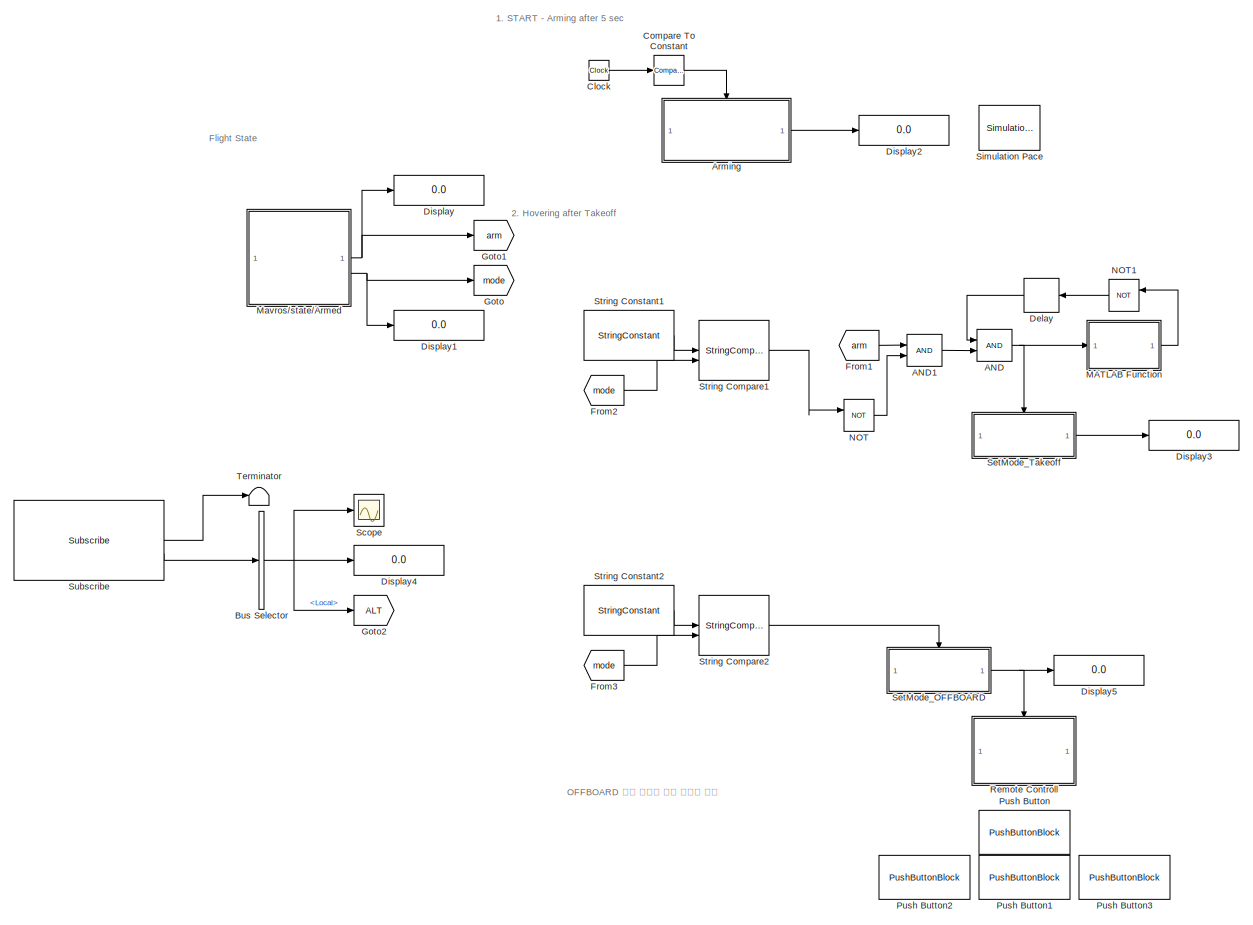
[diagram: root canvas - part 1/1, most of the canvas]
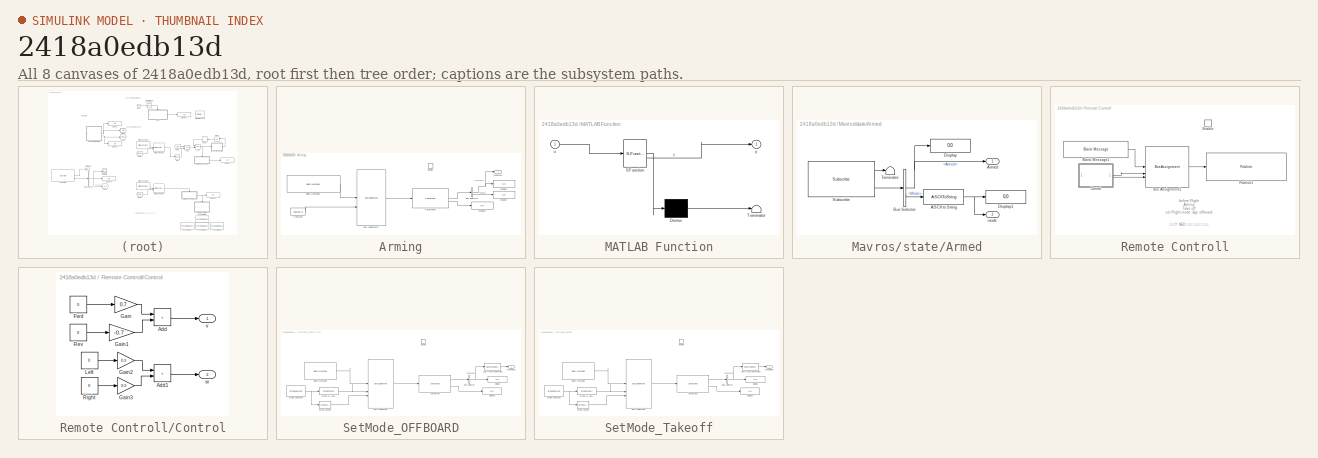
[diagram: thumbnail index - all 8 canvases of the model, root first then tree order]
MODEL slx_2418a0edb13d
KIND model
CONFIG AbsTol = auto
CONFIG EnableMultiTasking = off
CONFIG FixedStep = auto
CONFIG MaxStep = auto
CONFIG MinStep = auto
CONFIG RelTol = 1e-3
CONFIG SampleTimeConstraint = Unconstrained
CONFIG SolverName = FixedStepAuto
CONFIG StartTime = 0.0
CONFIG StopTime = 1000
BLOCK [Logic] AND
  AllPortsSameDT = off
  IconShape = distinctive
  OutDataTypeStr = boolean
BLOCK [Logic] AND1
  AllPortsSameDT = off
  IconShape = distinctive
  OutDataTypeStr = boolean
BLOCK [SubSystem] Arming
BLOCK [Reference] Arming/Blank Message1  REF=robotlib/Blank Message
  SourceBlock = robotlib/Blank Message
  SourceType = ROS Blank Message
BLOCK [BusAssignment] Arming/Bus Assignment1
  AssignedSignals = Value
BLOCK [BusSelector] Arming/Bus Selector1
  OutputSignals = Success,Result
BLOCK [Reference] Arming/Call Service1  REF=robotlib/Call Service
  SourceBlock = robotlib/Call Service
  SourceType = ROS Call Service
BLOCK [Constant] Arming/Constant
  Value = logical(1)
BLOCK [Display] Arming/Display2
  Decimation = 1
BLOCK [Display] Arming/Display3
  Decimation = 1
BLOCK [Display] Arming/Display4
  Decimation = 1
BLOCK [EnablePort] Arming/Enable
BLOCK [Outport] Arming/isSuccess
BLOCK [BusSelector] Bus Selector
  OutputSignals = Local
BLOCK [Clock] Clock
BLOCK [Reference] Compare To Constant  REF=simulink/Logic and Bit
Operations/Compare
To Constant
  SourceBlock = simulink/Logic and Bit\nOperations/Compare\nTo Constant
  SourceType = Compare To Constant
BLOCK [Delay] Delay
  InputPortMap = u0
  NameLocation = top
BLOCK [Display] Display
  Decimation = 1
BLOCK [Display] Display1
  Decimation = 1
BLOCK [Display] Display2
  Decimation = 1
BLOCK [Display] Display3
  Decimation = 1
BLOCK [Display] Display4
  Decimation = 1
BLOCK [Display] Display5
  Decimation = 1
BLOCK [From] From1
  GotoTag = arm
BLOCK [From] From2
  GotoTag = mode
BLOCK [From] From3
  GotoTag = mode
BLOCK [Goto] Goto
  GotoTag = mode
BLOCK [Goto] Goto1
  GotoTag = arm
BLOCK [Goto] Goto2
  GotoTag = ALT
BLOCK [SubSystem] MATLAB Function
  ErrorFcn = Stateflow.Translate.translate
  LibrarySourceBlock = simulink/User-Defined\nFunctions/MATLAB Function
  PermitHierarchicalResolution = ExplicitOnly
  SFBlockType = MATLAB Function
  TreatAsAtomicUnit = on
BLOCK [Demux] MATLAB Function/ Demux 
  Outputs = 1
BLOCK [S-Function] MATLAB Function/ SFunction 
  EnableBusSupport = on
  FunctionName = sf_sfun
  PortCounts = [1 2]
  SFcnIsStateOwnerBlock = off
  SFunctionDeploymentMode = off
  Tag = Stateflow S-Function 2
BLOCK [Terminator] MATLAB Function/ Terminator 
BLOCK [Inport] MATLAB Function/u
BLOCK [Outport] MATLAB Function/y
BLOCK [SubSystem] Mavros//state//Armed
BLOCK [ASCIIToString] Mavros//state//Armed/ASCII to String
BLOCK [Outport] Mavros//state//Armed/Armed
BLOCK [BusSelector] Mavros//state//Armed/Bus Selector
  OutputSignals = Armed,Mode
BLOCK [Display] Mavros//state//Armed/Display
  Decimation = 1
BLOCK [Display] Mavros//state//Armed/Display1
  Decimation = 1
BLOCK [Reference] Mavros//state//Armed/Subscribe  REF=robotlib/Subscribe
  SourceBlock = robotlib/Subscribe
  SourceType = ROS Subscribe
BLOCK [Terminator] Mavros//state//Armed/Terminator
BLOCK [Outport] Mavros//state//Armed/mode
  Port = 2
BLOCK [Logic] NOT
  AllPortsSameDT = off
  IconShape = distinctive
  Operator = NOT
  OutDataTypeStr = boolean
BLOCK [Logic] NOT1
  AllPortsSameDT = off
  IconShape = distinctive
  NameLocation = top
  Operator = NOT
  OutDataTypeStr = boolean
BLOCK [PushButtonBlock] Push Button
  ButtonText = Fwd
  OffValue = 0.000000
BLOCK [PushButtonBlock] Push Button1
  ButtonText = Back
  OffValue = 0.000000
BLOCK [PushButtonBlock] Push Button2
  ButtonText = Left
  OffValue = 0.000000
BLOCK [PushButtonBlock] Push Button3
  ButtonText = Right
  OffValue = 0.000000
BLOCK [SubSystem] Remote Controll
BLOCK [Reference] Remote Controll/Blank Message1  REF=robotlib/Blank Message
  SourceBlock = robotlib/Blank Message
  SourceType = ROS Blank Message
BLOCK [BusAssignment] Remote Controll/Bus Assignment1
  AssignedSignals = Twist.Linear.X,Twist.Angular.Z
  NameLocation = top
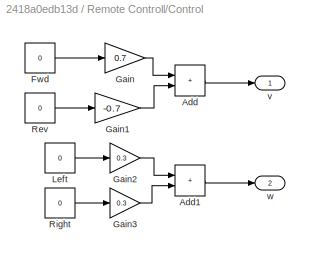
BLOCK [SubSystem] Remote Controll/Control
BLOCK [Sum] Remote Controll/Control/Add
  IconShape = rectangular
BLOCK [Sum] Remote Controll/Control/Add1
  IconShape = rectangular
BLOCK [Constant] Remote Controll/Control/Fwd
  Value = 0
BLOCK [Gain] Remote Controll/Control/Gain
  Gain = 0.7
BLOCK [Gain] Remote Controll/Control/Gain1
  Gain = -0.7
BLOCK [Gain] Remote Controll/Control/Gain2
  Gain = 0.3
BLOCK [Gain] Remote Controll/Control/Gain3
  Gain = 0.3
BLOCK [Constant] Remote Controll/Control/Left
  Value = 0
BLOCK [Constant] Remote Controll/Control/Rev
  Value = 0
BLOCK [Constant] Remote Controll/Control/Right
  Value = 0
BLOCK [Outport] Remote Controll/Control/v
BLOCK [Outport] Remote Controll/Control/w
  Port = 2
BLOCK [EnablePort] Remote Controll/Enable
BLOCK [Reference] Remote Controll/Publish1  REF=robotlib/Publish
  SourceBlock = robotlib/Publish
  SourceType = ROS Publish
BLOCK [Scope] Scope
  Floating = off
  NumInputPorts = 1
  ScopeSpecificationString = Simulink.scopes.TimeScopeBlockCfg('CurrentConfiguration', extmgr.ConfigurationSet(extmgr.Configuration('Core','General UI',true),extmgr.Configuration('Core','Source UI',true),extmgr.Configuration('Sources','WiredSimulink',true,'DataLoggingVariableName','ScopeData1'),extmgr.Configuration('Visuals','Time Domain',true,'SerializedDisplays',{struct('MinYLimReal','1.68635','MaxYLimReal','3.68635','YLabe...<+1364ch>
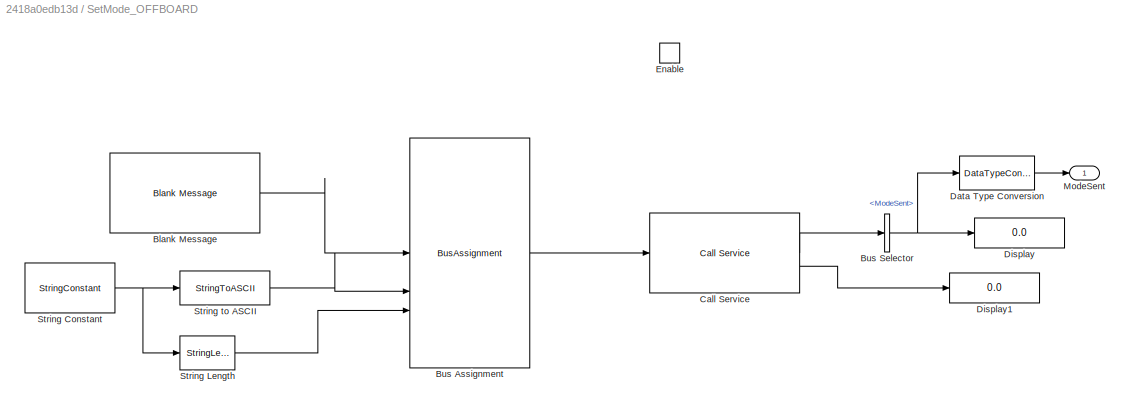
BLOCK [SubSystem] SetMode_OFFBOARD
BLOCK [Reference] SetMode_OFFBOARD/Blank Message  REF=robotlib/Blank Message
  SourceBlock = robotlib/Blank Message
  SourceType = ROS Blank Message
BLOCK [BusAssignment] SetMode_OFFBOARD/Bus Assignment
  AssignedSignals = CustomMode,CustomMode_SL_Info.CurrentLength
BLOCK [BusSelector] SetMode_OFFBOARD/Bus Selector
  OutputSignals = ModeSent
BLOCK [Reference] SetMode_OFFBOARD/Call Service  REF=robotlib/Call Service
  SourceBlock = robotlib/Call Service
  SourceType = ROS Call Service
BLOCK [DataTypeConversion] SetMode_OFFBOARD/Data Type Conversion
  OutDataTypeStr = boolean
  RndMeth = Floor
  SaturateOnIntegerOverflow = off
BLOCK [Display] SetMode_OFFBOARD/Display
  Decimation = 1
BLOCK [Display] SetMode_OFFBOARD/Display1
  Decimation = 1
BLOCK [EnablePort] SetMode_OFFBOARD/Enable
BLOCK [Outport] SetMode_OFFBOARD/ModeSent
BLOCK [StringConstant] SetMode_OFFBOARD/String Constant
  String = "OFFBOARD"
BLOCK [StringLength] SetMode_OFFBOARD/String Length
BLOCK [StringToASCII] SetMode_OFFBOARD/String to ASCII
  OutputVectorSize = 128
BLOCK [SubSystem] SetMode_Takeoff
BLOCK [Reference] SetMode_Takeoff/Blank Message  REF=robotlib/Blank Message
  SourceBlock = robotlib/Blank Message
  SourceType = ROS Blank Message
BLOCK [BusAssignment] SetMode_Takeoff/Bus Assignment
  AssignedSignals = CustomMode,CustomMode_SL_Info.CurrentLength
BLOCK [BusSelector] SetMode_Takeoff/Bus Selector
  OutputSignals = ModeSent
BLOCK [Reference] SetMode_Takeoff/Call Service  REF=robotlib/Call Service
  SourceBlock = robotlib/Call Service
  SourceType = ROS Call Service
BLOCK [DataTypeConversion] SetMode_Takeoff/Data Type Conversion
  OutDataTypeStr = boolean
  RndMeth = Floor
  SaturateOnIntegerOverflow = off
BLOCK [Display] SetMode_Takeoff/Display
  Decimation = 1
BLOCK [Display] SetMode_Takeoff/Display1
  Decimation = 1
BLOCK [EnablePort] SetMode_Takeoff/Enable
BLOCK [Outport] SetMode_Takeoff/ModeSent
BLOCK [StringConstant] SetMode_Takeoff/String Constant
  String = "AUTO.TAKEOFF"
BLOCK [StringLength] SetMode_Takeoff/String Length
BLOCK [StringToASCII] SetMode_Takeoff/String to ASCII
  OutputVectorSize = 128
BLOCK [Reference] Simulation Pace  REF=aerolibanimutils/Simulation Pace
  AttributesFormatString = %<SleepMode>\n%<SimulationPace> sec/sec
  SourceBlock = aerolibanimutils/Simulation Pace
  SourceType = Simulation Pace
BLOCK [StringCompare] String Compare1
BLOCK [StringCompare] String Compare2
BLOCK [StringConstant] String Constant1
  String = "AUTO.TAKEOFF"
BLOCK [StringConstant] String Constant2
  String = "AUTO.LOITER"
BLOCK [Reference] Subscribe  REF=robotlib/Subscribe
  SourceBlock = robotlib/Subscribe
  SourceType = ROS Subscribe
BLOCK [Terminator] Terminator
ANNOTATION (root): 1. START - Arming after 5 sec
ANNOTATION (root): 2. Hovering after Takeoff
ANNOTATION (root): Flight State
ANNOTATION (root): OFFBOARD 모드 진입후 고도 유지가 안됨
ANNOTATION Remote Controll: before Flight Arming Take off set Flight mode -> offboard
ANNOTATION Remote Controll: 문제점?: NED 좌표계 기준으로 움직임.
LINE AND1:1 -> AND:2
NET AND:1 -> MATLAB Function:1, SetMode_Takeoff:enable
LINE Arming/Blank Message1:1 -> Arming/Bus Assignment1:1
LINE Arming/Bus Assignment1:1 -> Arming/Call Service1:1
NET Arming/Bus Selector1:1 -> Arming/Display2:1, Arming/isSuccess:1
LINE Arming/Bus Selector1:2 -> Arming/Display4:1
LINE Arming/Call Service1:1 -> Arming/Bus Selector1:1
LINE Arming/Call Service1:2 -> Arming/Display3:1
LINE Arming/Constant:1 -> Arming/Bus Assignment1:2
LINE Arming:1 -> Display2:1
NET Bus Selector:1 -> Display4:1, Goto2:1, Scope:1
LINE Clock:1 -> Compare To Constant:1
LINE Compare To Constant:1 -> Arming:enable
LINE Delay:1 -> AND:1
LINE From1:1 -> AND1:1
LINE From2:1 -> String Compare1:2
LINE From3:1 -> String Compare2:2
LINE MATLAB Function:1 -> NOT1:1
NET Mavros//state//Armed/ASCII to String:1 -> Mavros//state//Armed/Display1:1, Mavros//state//Armed/mode:1
NET Mavros//state//Armed/Bus Selector:1 -> Mavros//state//Armed/Armed:1, Mavros//state//Armed/Display:1
LINE Mavros//state//Armed/Bus Selector:2 -> Mavros//state//Armed/ASCII to String:1
LINE Mavros//state//Armed/Subscribe:1 -> Mavros//state//Armed/Terminator:1
LINE Mavros//state//Armed/Subscribe:2 -> Mavros//state//Armed/Bus Selector:1
NET Mavros//state//Armed:1 -> Display:1, Goto1:1
NET Mavros//state//Armed:2 -> Display1:1, Goto:1
LINE NOT1:1 -> Delay:1
LINE NOT:1 -> AND1:2
LINE Remote Controll/Blank Message1:1 -> Remote Controll/Bus Assignment1:1
LINE Remote Controll/Bus Assignment1:1 -> Remote Controll/Publish1:1
LINE Remote Controll/Control/Add1:1 -> Remote Controll/Control/w:1
LINE Remote Controll/Control/Add:1 -> Remote Controll/Control/v:1
LINE Remote Controll/Control/Fwd:1 -> Remote Controll/Control/Gain:1
LINE Remote Controll/Control/Gain1:1 -> Remote Controll/Control/Add:2
LINE Remote Controll/Control/Gain2:1 -> Remote Controll/Control/Add1:1
LINE Remote Controll/Control/Gain3:1 -> Remote Controll/Control/Add1:2
LINE Remote Controll/Control/Gain:1 -> Remote Controll/Control/Add:1
LINE Remote Controll/Control/Left:1 -> Remote Controll/Control/Gain2:1
LINE Remote Controll/Control/Rev:1 -> Remote Controll/Control/Gain1:1
LINE Remote Controll/Control/Right:1 -> Remote Controll/Control/Gain3:1
LINE Remote Controll/Control:1 -> Remote Controll/Bus Assignment1:2
LINE Remote Controll/Control:2 -> Remote Controll/Bus Assignment1:3
LINE SetMode_OFFBOARD/Blank Message:1 -> SetMode_OFFBOARD/Bus Assignment:1
LINE SetMode_OFFBOARD/Bus Assignment:1 -> SetMode_OFFBOARD/Call Service:1
NET SetMode_OFFBOARD/Bus Selector:1 -> SetMode_OFFBOARD/Data Type Conversion:1, SetMode_OFFBOARD/Display:1
LINE SetMode_OFFBOARD/Call Service:1 -> SetMode_OFFBOARD/Bus Selector:1
LINE SetMode_OFFBOARD/Call Service:2 -> SetMode_OFFBOARD/Display1:1
LINE SetMode_OFFBOARD/Data Type Conversion:1 -> SetMode_OFFBOARD/ModeSent:1
NET SetMode_OFFBOARD/String Constant:1 -> SetMode_OFFBOARD/String Length:1, SetMode_OFFBOARD/String to ASCII:1
LINE SetMode_OFFBOARD/String Length:1 -> SetMode_OFFBOARD/Bus Assignment:3
LINE SetMode_OFFBOARD/String to ASCII:1 -> SetMode_OFFBOARD/Bus Assignment:2
NET SetMode_OFFBOARD:1 -> Display5:1, Remote Controll:enable
LINE SetMode_Takeoff/Blank Message:1 -> SetMode_Takeoff/Bus Assignment:1
LINE SetMode_Takeoff/Bus Assignment:1 -> SetMode_Takeoff/Call Service:1
NET SetMode_Takeoff/Bus Selector:1 -> SetMode_Takeoff/Data Type Conversion:1, SetMode_Takeoff/Display:1
LINE SetMode_Takeoff/Call Service:1 -> SetMode_Takeoff/Bus Selector:1
LINE SetMode_Takeoff/Call Service:2 -> SetMode_Takeoff/Display1:1
LINE SetMode_Takeoff/Data Type Conversion:1 -> SetMode_Takeoff/ModeSent:1
NET SetMode_Takeoff/String Constant:1 -> SetMode_Takeoff/String Length:1, SetMode_Takeoff/String to ASCII:1
LINE SetMode_Takeoff/String Length:1 -> SetMode_Takeoff/Bus Assignment:3
LINE SetMode_Takeoff/String to ASCII:1 -> SetMode_Takeoff/Bus Assignment:2
LINE SetMode_Takeoff:1 -> Display3:1
LINE String Compare1:1 -> NOT:1
LINE String Compare2:1 -> SetMode_OFFBOARD:enable
LINE String Constant1:1 -> String Compare1:1
LINE String Constant2:1 -> String Compare2:1
LINE Subscribe:1 -> Terminator:1
LINE Subscribe:2 -> Bus Selector:1
note: NET lines group one-source signal fan-out (src -> all destinations, sorted); 1:1 wires keep LINE
CHART MATLAB Function states=1 transitions=1
  STATE_LABEL 'eML_blk_kernel()'
  STATE_LABEL 'SCRIPT:\nfunction y = isTakeOffed(u)\npersistent takeoff\n\nif(isempty(takeoff))\ntakeoff = false;\nend\n\nif(u == true)\n    takeoff = true;\nend\n\ny = takeoff;\n'
CHART  states=0 transitions=0
